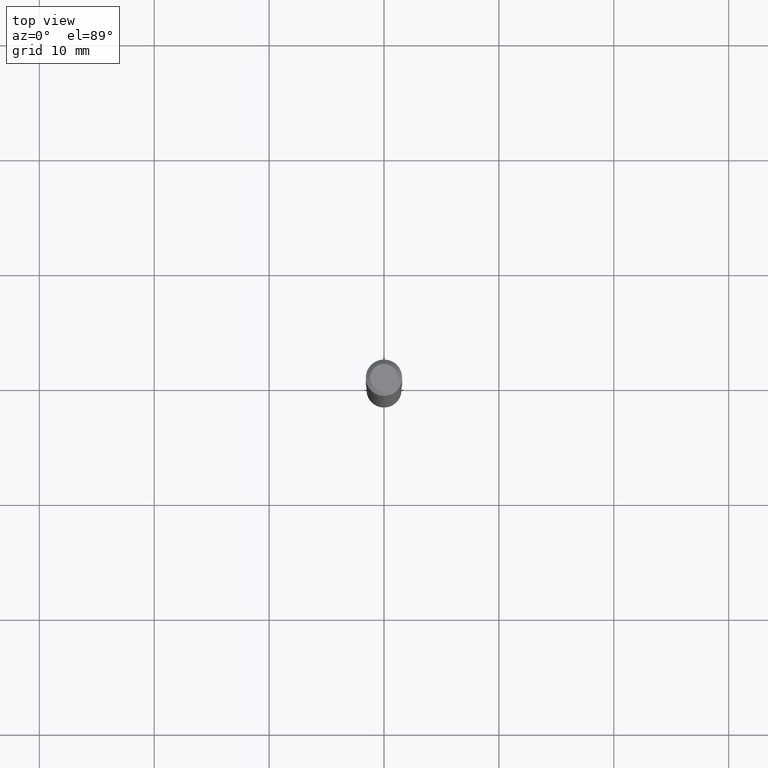
[diagram: clean part render]
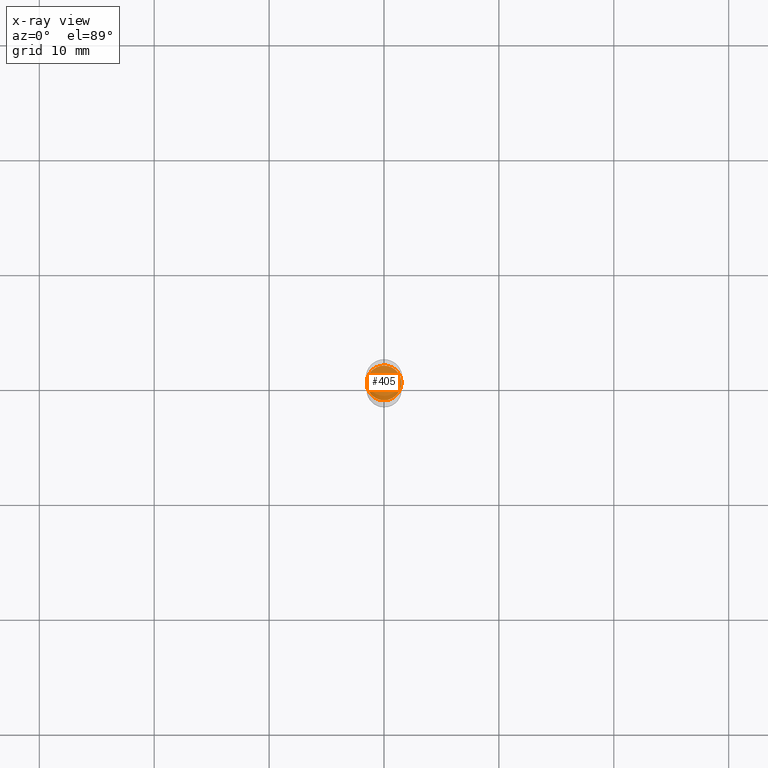
[diagram: x-ray — body ghosted, one internal face saturated and labeled with its STEP entity id]
A machine part, top view, then the same camera in x-ray: the body is ghosted and one INTERNAL B-rep face — a face not visible from any outside direction — is saturated and labeled: STEP entity #405.
In plain terms, the highlighted planar face has unit normal (-0, 0, 1).
Its self-contained STEP definition (entity closure, byte-faithful):
#11 = EDGE_CURVE ( 'NONE', #110, #176, #288, .T. ) ;
#35 = DIRECTION ( 'NONE',  ( -6.982962677686265922E-15, -1.000000000000000000, 4.591341165822292005E-15 ) ) ;
#55 = DIRECTION ( 'NONE',  ( -2.445595617880551604E-29, 3.491299737277637269E-15, 1.000000000000000000 ) ) ;
#60 = CIRCLE ( 'NONE', #401, 0.05949999999999999040 ) ;
#110 = VERTEX_POINT ( 'NONE', #149 ) ;
#121 = CARTESIAN_POINT ( 'NONE',  ( 2.592331354953385670E-29, -3.700777721514296381E-15, -1.060000000000000275 ) ) ;
#127 = AXIS2_PLACEMENT_3D ( 'NONE', #292, #55, #169 ) ;
#149 = CARTESIAN_POINT ( 'NONE',  ( -4.154862793223068546E-16, -0.05950000000000368883, -1.059999999999999831 ) ) ;
#165 = DIRECTION ( 'NONE',  ( -6.982962677686265922E-15, -1.000000000000000000, 4.591341165822292005E-15 ) ) ;
#168 = DIRECTION ( 'NONE',  ( -2.445595617880551884E-29, 3.491299737277637269E-15, 1.000000000000000000 ) ) ;
#169 = DIRECTION ( 'NONE',  ( -6.982962677686265922E-15, -1.000000000000000000, 3.491299737277637269E-15 ) ) ;
#176 = VERTEX_POINT ( 'NONE', #429 ) ;
#198 = CARTESIAN_POINT ( 'NONE',  ( 2.592331354953385670E-29, -3.700777721514296381E-15, -1.060000000000000275 ) ) ;
#219 = ORIENTED_EDGE ( 'NONE', *, *, #264, .F. ) ;
#256 = FACE_OUTER_BOUND ( 'NONE', #299, .T. ) ;
#258 = PLANE ( 'NONE',  #127 ) ;
#264 = EDGE_CURVE ( 'NONE', #176, #110, #60, .T. ) ;
#288 = CIRCLE ( 'NONE', #400, 0.05949999999999999040 ) ;
#292 = CARTESIAN_POINT ( 'NONE',  ( 2.592331354953385670E-29, -3.700777721514296381E-15, -1.060000000000000275 ) ) ;
#299 = EDGE_LOOP ( 'NONE', ( #493, #219 ) ) ;
#325 = DIRECTION ( 'NONE',  ( -2.445595617880551884E-29, 3.491299737277637269E-15, 1.000000000000000000 ) ) ;
#400 = AXIS2_PLACEMENT_3D ( 'NONE', #198, #168, #165 ) ;
#401 = AXIS2_PLACEMENT_3D ( 'NONE', #121, #325, #35 ) ;
#405 = ADVANCED_FACE ( 'NONE', ( #256 ), #258, .F. ) ;
#429 = CARTESIAN_POINT ( 'NONE',  ( 4.245492846166858761E-16, 0.05949999999999629197, -1.060000000000000497 ) ) ;
#493 = ORIENTED_EDGE ( 'NONE', *, *, #11, .F. ) ;